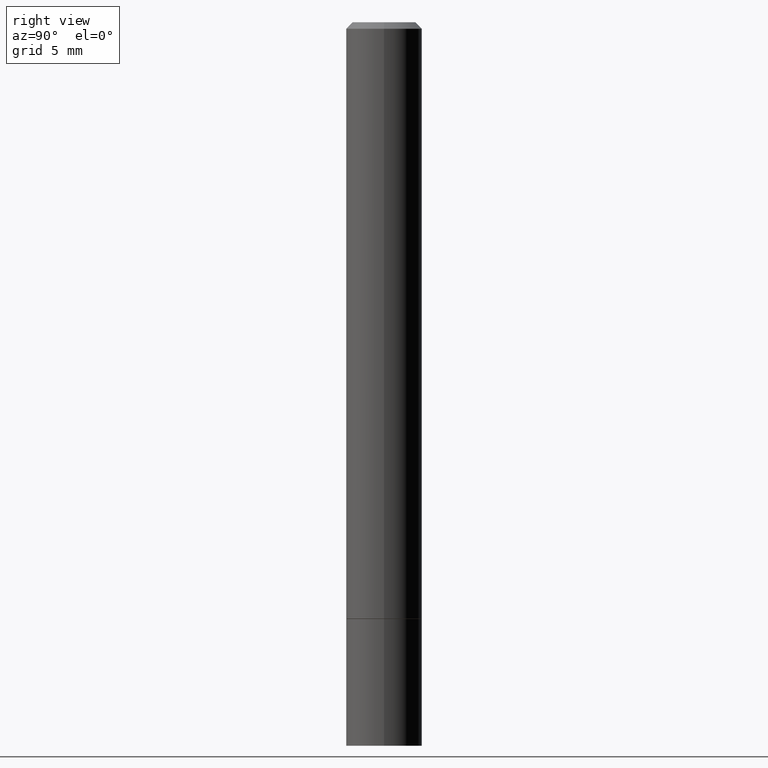
[diagram: clean part render]
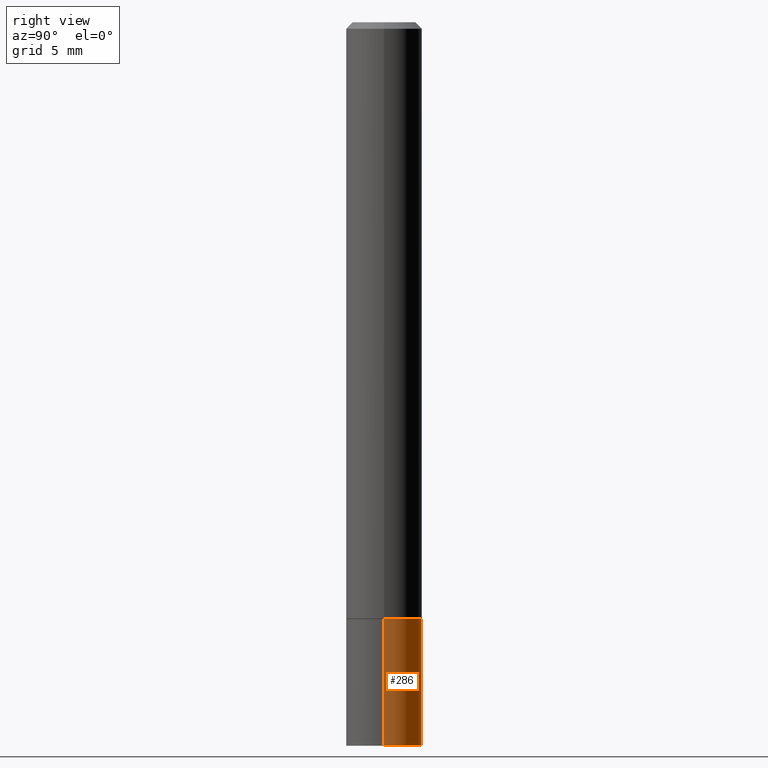
[diagram: same view with one face highlighted and labeled with its STEP entity id]
A machine part, right view. The second image highlights one B-rep face of the part: STEP entity #286.
In plain terms, the highlighted cylindrical surface (partial cylindrical patch) has radius 2.9997 mm, axis along (-0, 0, 1).
Its self-contained STEP definition (entity closure, byte-faithful):
#17 = CARTESIAN_POINT ( 'NONE',  ( -0.1180999999999999966, -6.308784200013950972E-15, -2.244099999999999984 ) ) ;
#19 = CARTESIAN_POINT ( 'NONE',  ( 4.525095478964976833E-29, -6.460637069395356787E-15, -1.850400000000000045 ) ) ;
#41 = DIRECTION ( 'NONE',  ( -2.445468806185136877E-29, 3.491481338843145188E-15, 1.000000000000000000 ) ) ;
#45 = LINE ( 'NONE', #147, #157 ) ;
#48 = CARTESIAN_POINT ( 'NONE',  ( 0.1180999999999999966, -8.659921164732650602E-15, -2.244099999999999984 ) ) ;
#50 = DIRECTION ( 'NONE',  ( -2.445468806185136597E-29, 3.491481338843145583E-15, 1.000000000000000000 ) ) ;
#75 = CARTESIAN_POINT ( 'NONE',  ( 0.000000000000000000, 0.000000000000000000, 0.000000000000000000 ) ) ;
#76 = EDGE_CURVE ( 'NONE', #85, #202, #312, .T. ) ;
#77 = FACE_OUTER_BOUND ( 'NONE', #257, .T. ) ;
#85 = VERTEX_POINT ( 'NONE', #215 ) ;
#100 = DIRECTION ( 'NONE',  ( 1.000000000000000000, -6.982962677686265133E-15, 0.000000000000000000 ) ) ;
#102 = DIRECTION ( 'NONE',  ( -2.445468806185136597E-29, 3.491481338843145583E-15, 1.000000000000000000 ) ) ;
#110 = CYLINDRICAL_SURFACE ( 'NONE', #276, 0.1180999999999999966 ) ;
#142 = VERTEX_POINT ( 'NONE', #48 ) ;
#147 = CARTESIAN_POINT ( 'NONE',  ( -0.1180999999999999966, 8.391509709326782957E-16, -5.809262341591043784E-30 ) ) ;
#157 = VECTOR ( 'NONE', #41, 39.37007874015748143 ) ;
#169 = CARTESIAN_POINT ( 'NONE',  ( -0.1180999999999999966, -6.308784200013950972E-15, -1.850400000000000045 ) ) ;
#170 = LINE ( 'NONE', #336, #189 ) ;
#177 = EDGE_CURVE ( 'NONE', #142, #345, #327, .T. ) ;
#180 = ORIENTED_EDGE ( 'NONE', *, *, #76, .F. ) ;
#181 = DIRECTION ( 'NONE',  ( -2.445468806185136597E-29, 3.491481338843145583E-15, 1.000000000000000000 ) ) ;
#189 = VECTOR ( 'NONE', #252, 39.37007874015748143 ) ;
#202 = VERTEX_POINT ( 'NONE', #169 ) ;
#206 = AXIS2_PLACEMENT_3D ( 'NONE', #354, #181, #241 ) ;
#215 = CARTESIAN_POINT ( 'NONE',  ( 0.1180999999999999966, -7.285324961630104261E-15, -1.850400000000000045 ) ) ;
#224 = DIRECTION ( 'NONE',  ( 1.000000000000000000, -6.982962677686266711E-15, 4.876176775795936353E-29 ) ) ;
#241 = DIRECTION ( 'NONE',  ( 1.000000000000000000, -6.982962677686265133E-15, 0.000000000000000000 ) ) ;
#252 = DIRECTION ( 'NONE',  ( -2.445468806185136877E-29, 3.491481338843145188E-15, 1.000000000000000000 ) ) ;
#257 = EDGE_LOOP ( 'NONE', ( #289, #343, #180, #262 ) ) ;
#262 = ORIENTED_EDGE ( 'NONE', *, *, #266, .F. ) ;
#266 = EDGE_CURVE ( 'NONE', #142, #85, #170, .T. ) ;
#275 = AXIS2_PLACEMENT_3D ( 'NONE', #19, #102, #100 ) ;
#276 = AXIS2_PLACEMENT_3D ( 'NONE', #75, #50, #224 ) ;
#286 = ADVANCED_FACE ( 'NONE', ( #77 ), #110, .T. ) ;
#289 = ORIENTED_EDGE ( 'NONE', *, *, #177, .T. ) ;
#312 = CIRCLE ( 'NONE', #275, 0.1180999999999999966 ) ;
#327 = CIRCLE ( 'NONE', #206, 0.1180999999999999966 ) ;
#336 = CARTESIAN_POINT ( 'NONE',  ( 0.1180999999999999966, -8.246878922347480654E-16, 5.758764772215000440E-30 ) ) ;
#343 = ORIENTED_EDGE ( 'NONE', *, *, #362, .T. ) ;
#345 = VERTEX_POINT ( 'NONE', #17 ) ;
#354 = CARTESIAN_POINT ( 'NONE',  ( 5.487876547960064752E-29, -7.835233272497902340E-15, -2.244099999999999984 ) ) ;
#362 = EDGE_CURVE ( 'NONE', #345, #202, #45, .T. ) ;